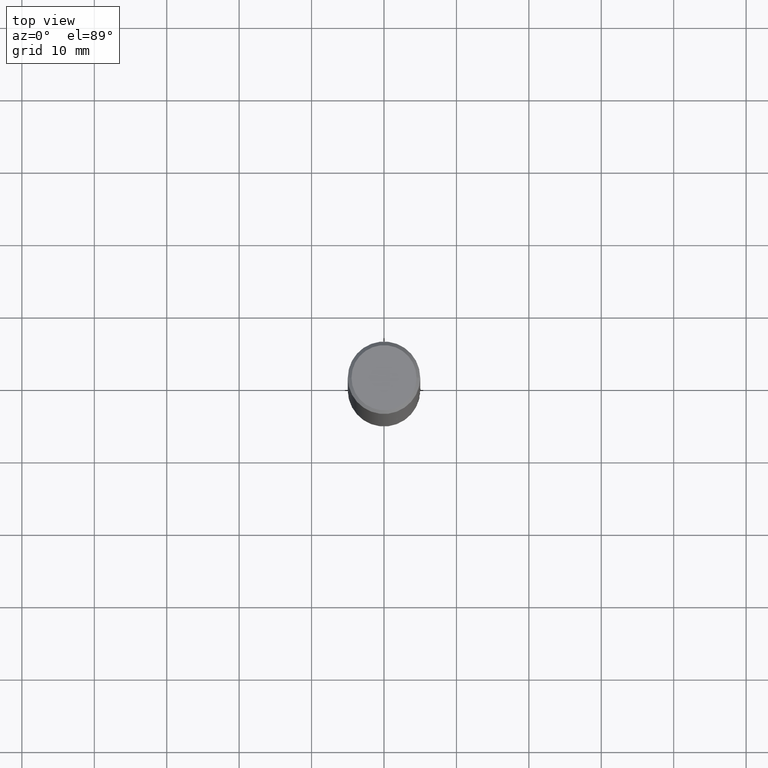
[diagram: clean part render]
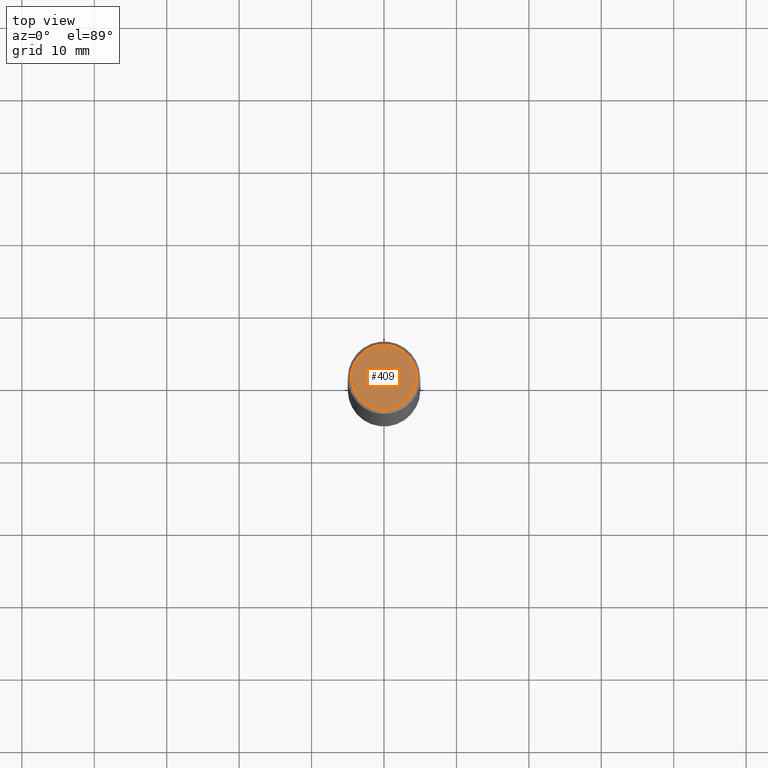
[diagram: same view with one face highlighted and labeled with its STEP entity id]
A machine part, top view. The second image highlights one B-rep face of the part: STEP entity #409.
In plain terms, the highlighted planar face has unit normal (0, -0, -1).
Its self-contained STEP definition (entity closure, byte-faithful):
#13 = AXIS2_PLACEMENT_3D ( 'NONE', #405, #48, #102 ) ;
#26 = DIRECTION ( 'NONE',  ( 1.000000000000000000, -6.982962677686266711E-15, 4.870572768024644056E-29 ) ) ;
#36 = CARTESIAN_POINT ( 'NONE',  ( -0.1768499999999998407, 1.269851762937247450E-15, 2.219626494852126227E-16 ) ) ;
#48 = DIRECTION ( 'NONE',  ( 2.438088387897960049E-29, -3.491481338843145188E-15, -1.000000000000000000 ) ) ;
#56 = CARTESIAN_POINT ( 'NONE',  ( -5.428027354543142984E-45, 7.749784485978325769E-31, 2.219626494852213988E-16 ) ) ;
#58 = ORIENTED_EDGE ( 'NONE', *, *, #89, .T. ) ;
#59 = EDGE_CURVE ( 'NONE', #117, #230, #314, .T. ) ;
#77 = FACE_OUTER_BOUND ( 'NONE', #413, .T. ) ;
#81 = AXIS2_PLACEMENT_3D ( 'NONE', #56, #189, #26 ) ;
#89 = EDGE_CURVE ( 'NONE', #230, #117, #401, .T. ) ;
#97 = CARTESIAN_POINT ( 'NONE',  ( 0.1768499999999998407, -1.316798864272041549E-15, 2.219626494852302982E-16 ) ) ;
#102 = DIRECTION ( 'NONE',  ( -1.000000000000000000, 6.982962677686265922E-15, -4.876176775795935793E-29 ) ) ;
#117 = VERTEX_POINT ( 'NONE', #36 ) ;
#189 = DIRECTION ( 'NONE',  ( -2.445468806185136597E-29, 3.491481338843145583E-15, 1.000000000000000000 ) ) ;
#221 = DIRECTION ( 'NONE',  ( 1.000000000000000000, -6.982962677686266711E-15, 4.870572768024644056E-29 ) ) ;
#230 = VERTEX_POINT ( 'NONE', #97 ) ;
#242 = AXIS2_PLACEMENT_3D ( 'NONE', #284, #320, #221 ) ;
#244 = PLANE ( 'NONE',  #13 ) ;
#284 = CARTESIAN_POINT ( 'NONE',  ( -5.428027354543142984E-45, 7.749784485978325769E-31, 2.219626494852213988E-16 ) ) ;
#314 = CIRCLE ( 'NONE', #242, 0.1768499999999998407 ) ;
#320 = DIRECTION ( 'NONE',  ( -2.445468806185136597E-29, 3.491481338843145583E-15, 1.000000000000000000 ) ) ;
#379 = ORIENTED_EDGE ( 'NONE', *, *, #59, .T. ) ;
#401 = CIRCLE ( 'NONE', #81, 0.1768499999999998407 ) ;
#405 = CARTESIAN_POINT ( 'NONE',  ( 1.234936949548815012E-15, 0.1768499999999998407, -5.064871500317991731E-16 ) ) ;
#409 = ADVANCED_FACE ( 'NONE', ( #77 ), #244, .F. ) ;
#413 = EDGE_LOOP ( 'NONE', ( #379, #58 ) ) ;